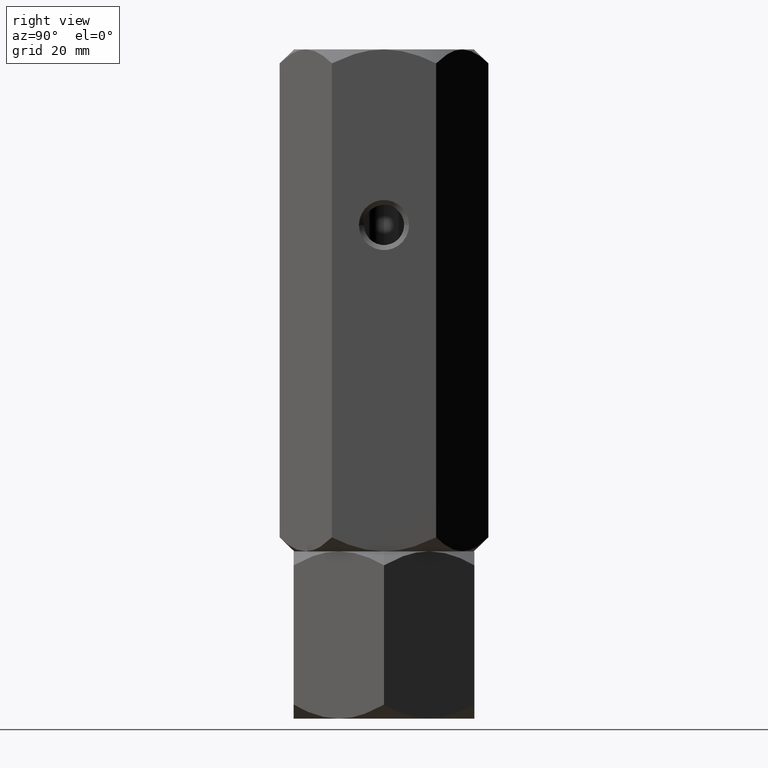
[diagram: clean part render]
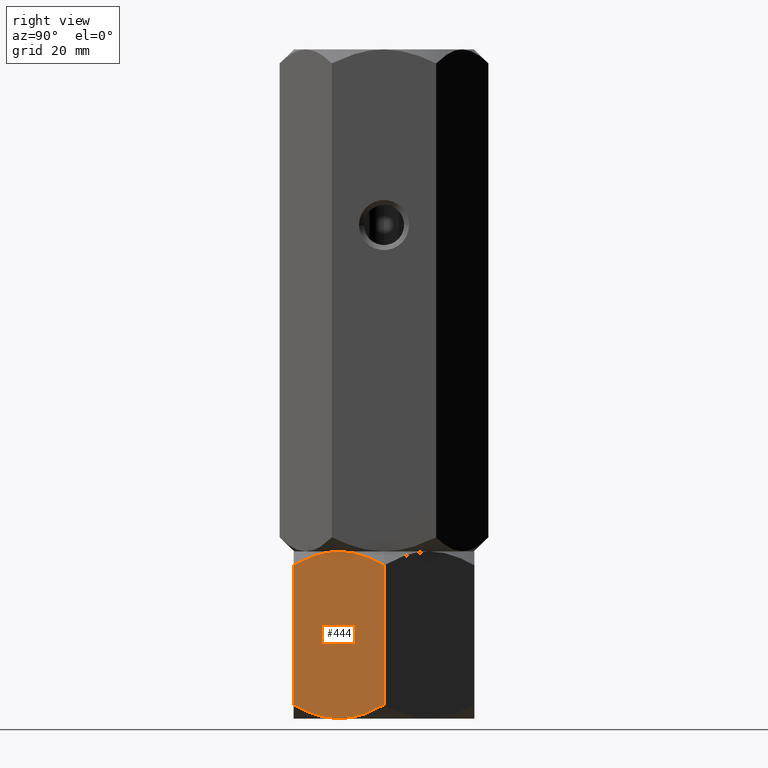
[diagram: same view with one face highlighted and labeled with its STEP entity id]
A machine part, right view. The second image highlights one B-rep face of the part: STEP entity #444.
In plain terms, the highlighted planar face has unit normal (-0.866, 0.5, 0).
Its self-contained STEP definition (entity closure, byte-faithful):
#24 = LINE ( 'NONE', #1939, #1886 ) ;
#50 = CARTESIAN_POINT ( 'NONE',  ( 15.58845726811989429, -9.000000000000001776, 0.000000000000000000 ) ) ;
#67 = CARTESIAN_POINT ( 'NONE',  ( 15.58845726811989429, -9.000000000000001776, 33.33333333333330017 ) ) ;
#105 = VERTEX_POINT ( 'NONE', #67 ) ;
#110 = CARTESIAN_POINT ( 'NONE',  ( 15.58845726811989429, -9.000000000000001776, 0.000000000000000000 ) ) ;
#114 = CARTESIAN_POINT ( 'NONE',  ( 15.58845726811989429, -9.000000000000001776, 33.33333333333330017 ) ) ;
#133 = CARTESIAN_POINT ( 'NONE',  ( 14.67378923359658138, -10.58425150785354418, 33.24638644321514391 ) ) ;
#145 = CARTESIAN_POINT ( 'NONE',  ( 19.13297464765288325, -2.860715810337963738, 32.06075863182904584 ) ) ;
#177 = ORIENTED_EDGE ( 'NONE', *, *, #324, .T. ) ;
#219 = CARTESIAN_POINT ( 'NONE',  ( 13.79618737047370125, -12.10430252359947900, 0.2763959071215842944 ) ) ;
#284 = CARTESIAN_POINT ( 'NONE',  ( 12.04041001437222214, -15.14539811114618928, 32.05595025544342747 ) ) ;
#305 = CARTESIAN_POINT ( 'NONE',  ( 16.72971695024924799, -7.023280245922048692, 0.1387225990985750668 ) ) ;
#324 = EDGE_CURVE ( 'NONE', #485, #1612, #24, .T. ) ;
#401 = PLANE ( 'NONE',  #1789 ) ;
#440 = B_SPLINE_CURVE_WITH_KNOTS ( 'NONE', 3,
 ( #1059, #2027, #284, #757, #1877, #1869, #133, #744, #1536, #1385 ),
 .UNSPECIFIED., .F., .F.,
 ( 4, 2, 2, 2, 4 ),
 ( 2.544307986796311447E-07, 0.005386537354063074268, 0.008079678815695273339, 0.009426249546511370273, 0.01077282027732746721 ),
 .UNSPECIFIED. ) ;
#444 = ADVANCED_FACE ( 'NONE', ( #1443 ), #401, .F. ) ;
#468 = CARTESIAN_POINT ( 'NONE',  ( 20.78460969082652809, -4.404509159444062513E-16, 2.784609690826518769 ) ) ;
#480 = ORIENTED_EDGE ( 'NONE', *, *, #629, .F. ) ;
#481 = CARTESIAN_POINT ( 'NONE',  ( 17.40248616759156874, -5.858009779716798704, 0.3405631022552671472 ) ) ;
#485 = VERTEX_POINT ( 'NONE', #1817 ) ;
#583 = CARTESIAN_POINT ( 'NONE',  ( 16.04483044561308702, -8.209538469370128766, 0.01733285647409073954 ) ) ;
#600 = CARTESIAN_POINT ( 'NONE',  ( 17.38072716576608912, -5.895697476400520110, 33.05693742621171083 ) ) ;
#603 = CARTESIAN_POINT ( 'NONE',  ( 20.78460969082652809, -4.404509159444062513E-16, 2.784609690826518769 ) ) ;
#628 = EDGE_CURVE ( 'NONE', #485, #105, #440, .T. ) ;
#629 = EDGE_CURVE ( 'NONE', #105, #1398, #637, .T. ) ;
#637 = B_SPLINE_CURVE_WITH_KNOTS ( 'NONE', 3,
 ( #114, #728, #600, #145, #1528, #1076 ),
 .UNSPECIFIED., .F., .F.,
 ( 4, 2, 4 ),
 ( 0.01077282027732746721, 0.01612137750481873466, 0.02146993473231000038 ),
 .UNSPECIFIED. ) ;
#677 = CARTESIAN_POINT ( 'NONE',  ( 14.68463803553234825, -10.56546083169953754, 1.128247885742727657E-15 ) ) ;
#728 = CARTESIAN_POINT ( 'NONE',  ( 16.49227650070744389, -7.434539168300460688, 33.33333333333330017 ) ) ;
#744 = CARTESIAN_POINT ( 'NONE',  ( 15.13208409062669446, -9.790461530629873010, 33.31600047685921595 ) ) ;
#754 = CARTESIAN_POINT ( 'NONE',  ( 17.84166640377631907, -5.097327296964724752, 0.5370855558290092979 ) ) ;
#757 = CARTESIAN_POINT ( 'NONE',  ( 13.33524813246346952, -12.90267270303527525, 32.79624777750428422 ) ) ;
#965 = B_SPLINE_CURVE_WITH_KNOTS ( 'NONE', 3,
 ( #468, #1729, #1065, #754, #481, #305, #1716, #583, #2042, #1532 ),
 .UNSPECIFIED., .F., .F.,
 ( 4, 2, 2, 2, 4 ),
 ( 2.544307986819122044E-07, 0.005386537354063078605, 0.008079678815695276808, 0.009426249546511375477, 0.01077282027732747414 ),
 .UNSPECIFIED. ) ;
#1018 = DIRECTION ( 'NONE',  ( -0.5000000000000001110, -0.8660254037844385966, 0.000000000000000000 ) ) ;
#1051 = ORIENTED_EDGE ( 'NONE', *, *, #1364, .F. ) ;
#1059 = CARTESIAN_POINT ( 'NONE',  ( 10.39230484541326227, -18.00000000000000000, 30.54872364250678274 ) ) ;
#1065 = CARTESIAN_POINT ( 'NONE',  ( 19.13650452186756112, -2.854601888853813385, 1.277383077889869600 ) ) ;
#1076 = CARTESIAN_POINT ( 'NONE',  ( 20.78460969082652809, 2.339913672068599110E-16, 30.54872364250677919 ) ) ;
#1089 = LINE ( 'NONE', #1701, #1176 ) ;
#1106 = DIRECTION ( 'NONE',  ( -0.000000000000000000, -0.000000000000000000, -1.000000000000000000 ) ) ;
#1162 = CARTESIAN_POINT ( 'NONE',  ( 12.04393988858690356, -15.13928418966203182, 1.272574701504241235 ) ) ;
#1176 = VECTOR ( 'NONE', #1552, 1000.000000000000000 ) ;
#1255 = EDGE_LOOP ( 'NONE', ( #2041, #177, #1051, #1392, #1360, #480 ) ) ;
#1320 = CARTESIAN_POINT ( 'NONE',  ( 10.39230484541326227, -18.00000000000000000, 2.784609690826516104 ) ) ;
#1360 = ORIENTED_EDGE ( 'NONE', *, *, #2044, .F. ) ;
#1364 = EDGE_CURVE ( 'NONE', #1973, #1612, #1980, .T. ) ;
#1385 = CARTESIAN_POINT ( 'NONE',  ( 15.58845726811989429, -9.000000000000001776, 33.33333333333330017 ) ) ;
#1392 = ORIENTED_EDGE ( 'NONE', *, *, #1954, .F. ) ;
#1398 = VERTEX_POINT ( 'NONE', #1950 ) ;
#1443 = FACE_OUTER_BOUND ( 'NONE', #1255, .T. ) ;
#1477 = CARTESIAN_POINT ( 'NONE',  ( 10.39230484541326227, -18.00000000000000000, 33.33333333333330017 ) ) ;
#1528 = CARTESIAN_POINT ( 'NONE',  ( 19.97072132548310108, -1.409696000463987353, 31.36261200785025238 ) ) ;
#1532 = CARTESIAN_POINT ( 'NONE',  ( 15.58845726811989429, -9.000000000000001776, 0.000000000000000000 ) ) ;
#1536 = CARTESIAN_POINT ( 'NONE',  ( 15.36090870263097230, -9.394125676616233989, 33.33333333333330728 ) ) ;
#1552 = DIRECTION ( 'NONE',  ( -0.000000000000000000, -0.000000000000000000, -1.000000000000000000 ) ) ;
#1563 = VERTEX_POINT ( 'NONE', #603 ) ;
#1612 = VERTEX_POINT ( 'NONE', #1763 ) ;
#1701 = CARTESIAN_POINT ( 'NONE',  ( 20.78460969082652809, 0.000000000000000000, 33.33333333333330017 ) ) ;
#1716 = CARTESIAN_POINT ( 'NONE',  ( 16.50312530264320543, -7.415748492146457593, 0.08694689011815548429 ) ) ;
#1729 = CARTESIAN_POINT ( 'NONE',  ( 19.96977770663490048, -1.411330396252048702, 1.969777706634900483 ) ) ;
#1763 = CARTESIAN_POINT ( 'NONE',  ( 10.39230484541326227, -18.00000000000000000, 2.784609690826516104 ) ) ;
#1789 = AXIS2_PLACEMENT_3D ( 'NONE', #1477, #1975, #1018 ) ;
#1803 = CARTESIAN_POINT ( 'NONE',  ( 11.20619321075668395, -16.59030399953601531, 1.970721325483048458 ) ) ;
#1817 = CARTESIAN_POINT ( 'NONE',  ( 10.39230484541326227, -18.00000000000000000, 30.54872364250678274 ) ) ;
#1869 = CARTESIAN_POINT ( 'NONE',  ( 14.44719758599053705, -10.97671975407795131, 33.19461073423471476 ) ) ;
#1877 = CARTESIAN_POINT ( 'NONE',  ( 13.77442836864821629, -12.14199022028320130, 32.99277023107802620 ) ) ;
#1886 = VECTOR ( 'NONE', #1106, 1000.000000000000000 ) ;
#1939 = CARTESIAN_POINT ( 'NONE',  ( 10.39230484541326227, -18.00000000000000000, 33.33333333333330017 ) ) ;
#1950 = CARTESIAN_POINT ( 'NONE',  ( 20.78460969082652809, 2.339913672068599110E-16, 30.54872364250677919 ) ) ;
#1954 = EDGE_CURVE ( 'NONE', #1563, #1973, #965, .T. ) ;
#1973 = VERTEX_POINT ( 'NONE', #110 ) ;
#1975 = DIRECTION ( 'NONE',  ( -0.8660254037844385966, 0.5000000000000001110, 0.000000000000000000 ) ) ;
#1980 = B_SPLINE_CURVE_WITH_KNOTS ( 'NONE', 3,
 ( #50, #677, #219, #1162, #1803, #1320 ),
 .UNSPECIFIED., .F., .F.,
 ( 4, 2, 4 ),
 ( 0.01077282027732747414, 0.01612137750481873813, 0.02146993473231000038 ),
 .UNSPECIFIED. ) ;
#2027 = CARTESIAN_POINT ( 'NONE',  ( 11.20713682960488100, -16.58866960374795241, 31.36355562669839614 ) ) ;
#2041 = ORIENTED_EDGE ( 'NONE', *, *, #628, .F. ) ;
#2042 = CARTESIAN_POINT ( 'NONE',  ( 15.81600583360881807, -8.605874323383773117, 8.300922883092144309E-16 ) ) ;
#2044 = EDGE_CURVE ( 'NONE', #1398, #1563, #1089, .T. ) ;